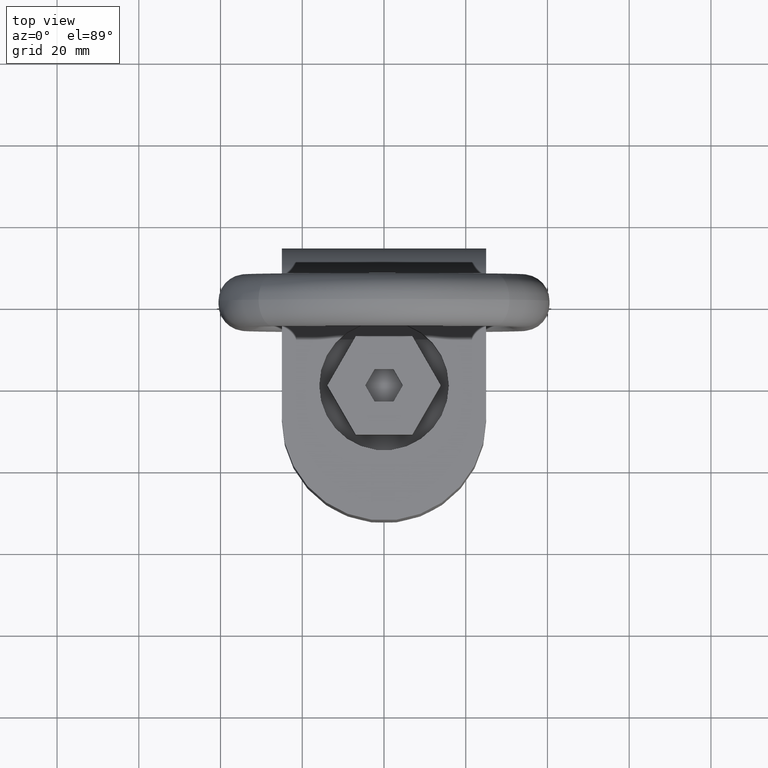
[diagram: clean part render]
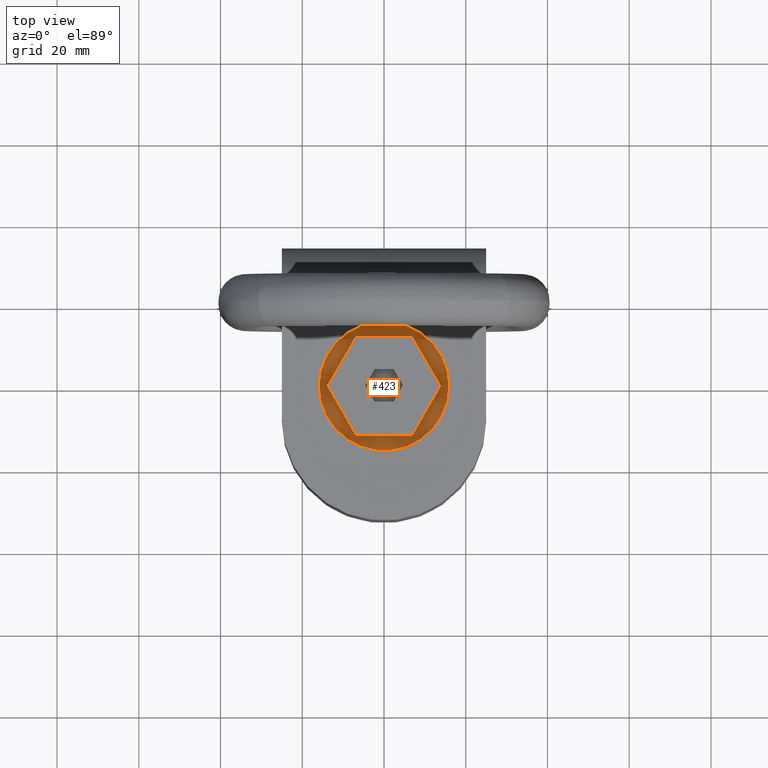
[diagram: same view with one face highlighted and labeled with its STEP entity id]
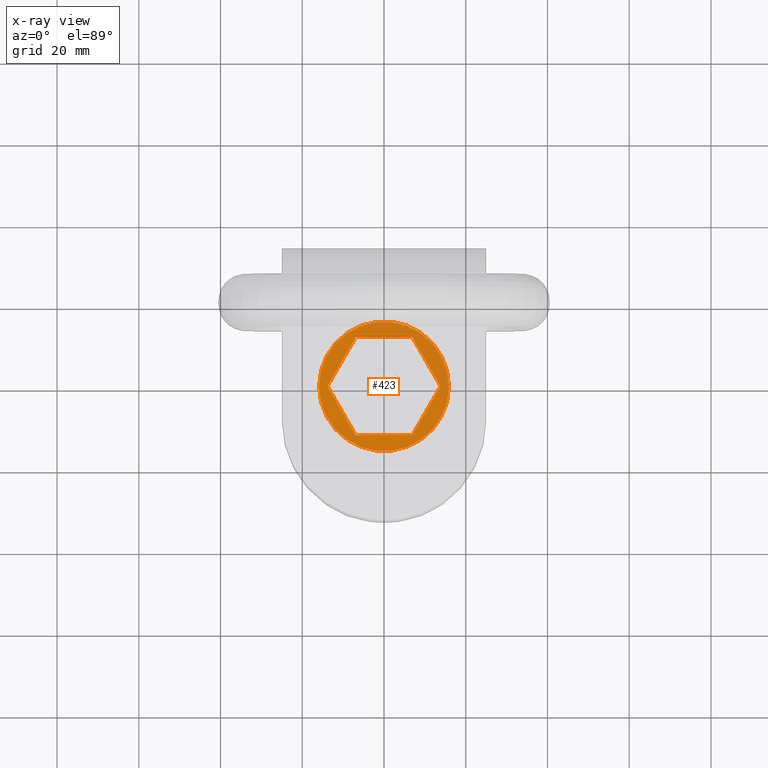
[diagram: x-ray of the same camera — body ghosted, the highlighted face saturated]
A machine part, top view. The second image highlights one B-rep face of the part: STEP entity #423.
The next image is the same camera in x-ray: the body ghosted, the highlighted face saturated — about 2% of this face is hidden behind the body in this view.
In plain terms, the highlighted planar face has unit normal (0, 0, 1).
Its self-contained STEP definition (entity closure, byte-faithful):
#250=PLANE('',#2516);
#423=ADVANCED_FACE('',(#588,#589),#250,.T.);
#588=FACE_BOUND('',#650,.T.);
#589=FACE_BOUND('',#651,.T.);
#650=EDGE_LOOP('',(#1251,#1252,#1253,#1254,#1255,#1256));
#651=EDGE_LOOP('',(#1257));
#812=LINE('',#3914,#943);
#813=LINE('',#3917,#944);
#814=LINE('',#3919,#945);
#815=LINE('',#3921,#946);
#816=LINE('',#3923,#947);
#817=LINE('',#3925,#948);
#943=VECTOR('',#2720,1.);
#944=VECTOR('',#2721,1.);
#945=VECTOR('',#2722,1.);
#946=VECTOR('',#2723,1.);
#947=VECTOR('',#2724,1.);
#948=VECTOR('',#2725,1.);
#1125=CIRCLE('',#2514,15.856406460551);
#1251=ORIENTED_EDGE('',*,*,#2073,.F.);
#1252=ORIENTED_EDGE('',*,*,#2074,.F.);
#1253=ORIENTED_EDGE('',*,*,#2075,.F.);
#1254=ORIENTED_EDGE('',*,*,#2076,.F.);
#1255=ORIENTED_EDGE('',*,*,#2077,.F.);
#1256=ORIENTED_EDGE('',*,*,#2078,.F.);
#1257=ORIENTED_EDGE('',*,*,#2072,.F.);
#1850=VERTEX_POINT('',#3912);
#1851=VERTEX_POINT('',#3915);
#1852=VERTEX_POINT('',#3916);
#1853=VERTEX_POINT('',#3918);
#1854=VERTEX_POINT('',#3920);
#1855=VERTEX_POINT('',#3922);
#1856=VERTEX_POINT('',#3924);
#2072=EDGE_CURVE('',#1850,#1850,#1125,.T.);
#2073=EDGE_CURVE('',#1851,#1852,#812,.T.);
#2074=EDGE_CURVE('',#1853,#1851,#813,.T.);
#2075=EDGE_CURVE('',#1854,#1853,#814,.T.);
#2076=EDGE_CURVE('',#1855,#1854,#815,.T.);
#2077=EDGE_CURVE('',#1856,#1855,#816,.T.);
#2078=EDGE_CURVE('',#1852,#1856,#817,.T.);
#2514=AXIS2_PLACEMENT_3D('',#3911,#2716,#2717);
#2516=AXIS2_PLACEMENT_3D('',#3926,#2726,#2727);
#2716=DIRECTION('',(0.,0.,-1.));
#2717=DIRECTION('',(1.,0.,0.));
#2720=DIRECTION('',(0.5,-0.866025403784438,0.));
#2721=DIRECTION('',(-0.5,-0.866025403784438,0.));
#2722=DIRECTION('',(-1.,-1.25192883228097E-16,0.));
#2723=DIRECTION('',(-0.5,0.866025403784439,0.));
#2724=DIRECTION('',(0.5,0.866025403784438,0.));
#2725=DIRECTION('',(1.,-1.25192883228097E-16,0.));
#2726=DIRECTION('',(0.,0.,1.));
#2727=DIRECTION('',(1.,0.,0.));
#3911=CARTESIAN_POINT('',(0.,0.,26.5));
#3912=CARTESIAN_POINT('',(15.856406460551,0.,26.5));
#3914=CARTESIAN_POINT('',(-13.856406460551,-3.5527136788005E-15,26.5));
#3915=CARTESIAN_POINT('',(-13.856406460551,-3.5527136788005E-15,26.5));
#3916=CARTESIAN_POINT('',(-6.92820323027551,-12.,26.5));
#3917=CARTESIAN_POINT('',(-6.92820323027551,12.,26.5));
#3918=CARTESIAN_POINT('',(-6.92820323027551,12.,26.5));
#3919=CARTESIAN_POINT('',(6.92820323027551,12.,26.5));
#3920=CARTESIAN_POINT('',(6.92820323027552,12.,26.5));
#3921=CARTESIAN_POINT('',(13.856406460551,-5.32907051820075E-15,26.5));
#3922=CARTESIAN_POINT('',(13.856406460551,-6.93889390390723E-15,26.5));
#3923=CARTESIAN_POINT('',(6.92820323027551,-12.,26.5));
#3924=CARTESIAN_POINT('',(6.92820323027551,-12.,26.5));
#3925=CARTESIAN_POINT('',(-6.92820323027551,-12.,26.5));
#3926=CARTESIAN_POINT('',(0.,0.,26.5));